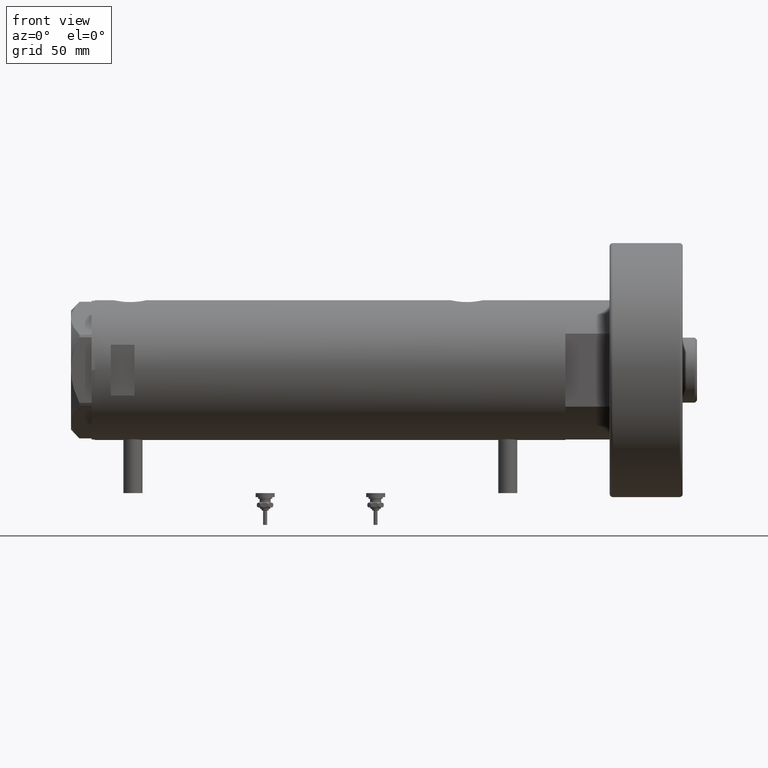
[diagram: clean part render]
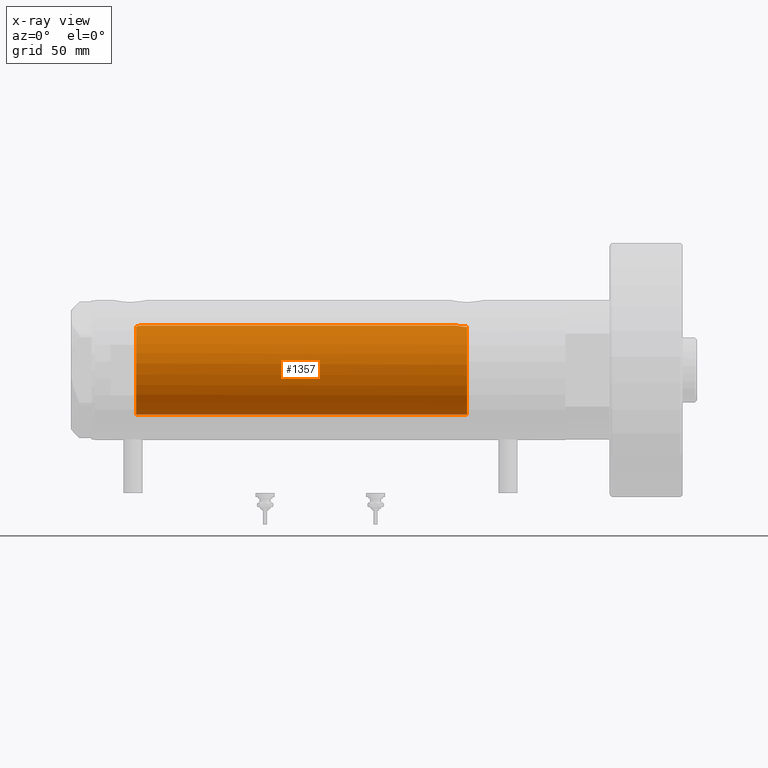
[diagram: x-ray — body ghosted, one internal face saturated and labeled with its STEP entity id]
A machine part, front view, then the same camera in x-ray: the body is ghosted and one INTERNAL B-rep face — a face not visible from any outside direction — is saturated and labeled: STEP entity #1357.
In plain terms, the highlighted cylindrical surface (partial cylindrical patch) has radius 28 mm, axis along (1, 0, -0).
Its self-contained STEP definition (entity closure, byte-faithful):
#195 = LINE ( 'NONE', #2579, #2081 ) ;
#234 = CARTESIAN_POINT ( 'NONE',  ( 27.87937907436173646, -2.608343522657378788, 119.8531017779724124 ) ) ;
#278 = CARTESIAN_POINT ( 'NONE',  ( 27.70817449315709169, -4.048115514111795932, -80.89463981057744490 ) ) ;
#318 = VECTOR ( 'NONE', #5687, 1000.000000000000000 ) ;
#372 = CARTESIAN_POINT ( 'NONE',  ( 27.99747352180818183, -0.4347571716796946872, -79.53072531013185653 ) ) ;
#394 = DIRECTION ( 'NONE',  ( 0.000000000000000000, 0.000000000000000000, -1.000000000000000000 ) ) ;
#411 = AXIS2_PLACEMENT_3D ( 'NONE', #3745, #5705, #3260 ) ;
#693 = VERTEX_POINT ( 'NONE', #5742 ) ;
#724 = CARTESIAN_POINT ( 'NONE',  ( 27.98730817101647261, -0.8707001454186249489, -79.57418472479976401 ) ) ;
#733 = ORIENTED_EDGE ( 'NONE', *, *, #5247, .T. ) ;
#777 = CARTESIAN_POINT ( 'NONE',  ( 27.68450581507584829, -4.196237264393386290, 120.8246780296441614 ) ) ;
#854 = VERTEX_POINT ( 'NONE', #5141 ) ;
#1097 = CARTESIAN_POINT ( 'NONE',  ( 0.000000000000000000, 0.000000000000000000, 122.2000000000000028 ) ) ;
#1200 = CARTESIAN_POINT ( 'NONE',  ( 27.43032278742160912, -5.620674311437150017, -82.67201933177628348 ) ) ;
#1219 = CARTESIAN_POINT ( 'NONE',  ( 27.52591771332015824, -5.139864392033239859, 121.7568941995207723 ) ) ;
#1233 = CARTESIAN_POINT ( 'NONE',  ( 27.21605408577812213, -6.579240077698945477, -86.20000000000000284 ) ) ;
#1266 = CARTESIAN_POINT ( 'NONE',  ( 27.28993558706078559, -6.267945658363885286, -84.05080727201161039 ) ) ;
#1277 = CYLINDRICAL_SURFACE ( 'NONE', #411, 28.00000000000000000 ) ;
#1281 = CARTESIAN_POINT ( 'NONE',  ( 27.46622653369042766, -5.441176343402221782, 122.2000000000000028 ) ) ;
#1284 = CARTESIAN_POINT ( 'NONE',  ( 0.000000000000000000, 0.000000000000000000, -86.20000000000000284 ) ) ;
#1326 = CARTESIAN_POINT ( 'NONE',  ( 27.80238224209238851, -3.326386449198554196, -80.41852099557873146 ) ) ;
#1330 = ORIENTED_EDGE ( 'NONE', *, *, #3242, .F. ) ;
#1357 = ADVANCED_FACE ( 'NONE', ( #1773 ), #1277, .F. ) ;
#1405 = CARTESIAN_POINT ( 'NONE',  ( 27.21605408577812213, -6.579240077698945477, -86.20000000000000284 ) ) ;
#1407 = B_SPLINE_CURVE_WITH_KNOTS ( 'NONE', 3,
 ( #1233, #3182, #4780, #5165, #1266, #5692, #3667, #3760, #1200, #5129, #4681, #4650, #278, #2816, #1326, #3215, #6174, #3309, #5225, #5259, #724, #372, #5198, #6272 ),
 .UNSPECIFIED., .F., .F.,
 ( 4, 2, 2, 2, 2, 2, 2, 2, 2, 2, 2, 4 ),
 ( 0.01022506235776658549, 0.01152748911132699984, 0.01282991586488741419, 0.01348112924166763871, 0.01413234261844786496, 0.01543476937200835390, 0.01673719612556884284, 0.01738840950234907604, 0.01803962287912930923, 0.01934204963268975827, 0.01999326300946997759, 0.02064447638625020037 ),
 .UNSPECIFIED. ) ;
#1505 = CARTESIAN_POINT ( 'NONE',  ( 28.00000000000000000, 8.058211040172173087E-16, -79.52000000000001023 ) ) ;
#1542 = B_SPLINE_CURVE_WITH_KNOTS ( 'NONE', 3,
 ( #1649, #5642, #2679, #2261, #3171, #234, #3239, #6129, #3805, #3204, #777, #4222, #1219, #1281 ),
 .UNSPECIFIED., .F., .F.,
 ( 4, 2, 2, 2, 2, 2, 4 ),
 ( 0.000000000000000000, 0.001600622945448075193, 0.002400934418172112356, 0.003201245890896149519, 0.004001557363620186249, 0.004801868836344223845, 0.006402491781792267814 ),
 .UNSPECIFIED. ) ;
#1611 = DIRECTION ( 'NONE',  ( 1.000000000000000000, 0.000000000000000000, 0.000000000000000000 ) ) ;
#1649 = CARTESIAN_POINT ( 'NONE',  ( 28.00000000000000000, 0.000000000000000000, 119.3200000000000074 ) ) ;
#1679 = DIRECTION ( 'NONE',  ( 0.000000000000000000, 0.000000000000000000, 1.000000000000000000 ) ) ;
#1773 = FACE_OUTER_BOUND ( 'NONE', #4492, .T. ) ;
#1814 = DIRECTION ( 'NONE',  ( -1.000000000000000000, 0.000000000000000000, 0.000000000000000000 ) ) ;
#1872 = AXIS2_PLACEMENT_3D ( 'NONE', #1284, #394, #1814 ) ;
#1985 = AXIS2_PLACEMENT_3D ( 'NONE', #1097, #1679, #1611 ) ;
#2081 = VECTOR ( 'NONE', #3522, 1000.000000000000000 ) ;
#2248 = ORIENTED_EDGE ( 'NONE', *, *, #3671, .F. ) ;
#2261 = CARTESIAN_POINT ( 'NONE',  ( 27.94009016578284132, -1.849003963078876156, 119.5794787532051942 ) ) ;
#2331 = LINE ( 'NONE', #5193, #318 ) ;
#2446 = CARTESIAN_POINT ( 'NONE',  ( 28.00000000000000000, 0.000000000000000000, 119.3200000000000074 ) ) ;
#2504 = VERTEX_POINT ( 'NONE', #2446 ) ;
#2579 = CARTESIAN_POINT ( 'NONE',  ( 28.00000000000000000, 3.429011037612589276E-15, 148.1999999999999886 ) ) ;
#2590 = CIRCLE ( 'NONE', #1985, 28.00000000000000000 ) ;
#2679 = CARTESIAN_POINT ( 'NONE',  ( 27.98432695902670986, -1.071102777755444935, 119.3858034427758952 ) ) ;
#2776 = VERTEX_POINT ( 'NONE', #1505 ) ;
#2816 = CARTESIAN_POINT ( 'NONE',  ( 27.77950496257091828, -3.511644525604262768, -80.53121142391833587 ) ) ;
#3171 = CARTESIAN_POINT ( 'NONE',  ( 27.92172852149585793, -2.107204279616217146, 119.6607593279537554 ) ) ;
#3182 = CARTESIAN_POINT ( 'NONE',  ( 27.21445766202534244, -6.585843933871728062, -85.76551644800677821 ) ) ;
#3204 = CARTESIAN_POINT ( 'NONE',  ( 27.71590503262371996, -3.984646725731630035, 120.6568856620623933 ) ) ;
#3215 = CARTESIAN_POINT ( 'NONE',  ( 27.84562549742225812, -2.942523713096129701, -80.21055141078907980 ) ) ;
#3239 = CARTESIAN_POINT ( 'NONE',  ( 27.85549665828546040, -2.850794839423817173, 119.9636768369876307 ) ) ;
#3242 = EDGE_CURVE ( 'NONE', #854, #693, #2331, .T. ) ;
#3260 = DIRECTION ( 'NONE',  ( -1.000000000000000000, 0.000000000000000000, 0.000000000000000000 ) ) ;
#3309 = CARTESIAN_POINT ( 'NONE',  ( 27.92072186409136236, -2.143620579020480754, -79.86381653969050376 ) ) ;
#3379 = CARTESIAN_POINT ( 'NONE',  ( 27.46622653369042766, -5.441176343402221782, 122.2000000000000028 ) ) ;
#3522 = DIRECTION ( 'NONE',  ( -0.000000000000000000, -0.000000000000000000, -1.000000000000000000 ) ) ;
#3620 = ORIENTED_EDGE ( 'NONE', *, *, #5478, .T. ) ;
#3667 = CARTESIAN_POINT ( 'NONE',  ( 27.36461315879794043, -5.931995402771978121, -83.24427370164931972 ) ) ;
#3671 = EDGE_CURVE ( 'NONE', #2504, #4756, #1542, .T. ) ;
#3745 = CARTESIAN_POINT ( 'NONE',  ( 0.000000000000000000, 0.000000000000000000, 148.1999999999999886 ) ) ;
#3760 = CARTESIAN_POINT ( 'NONE',  ( 27.40754191563010522, -5.730381220489945804, -82.85863096555547713 ) ) ;
#3803 = ORIENTED_EDGE ( 'NONE', *, *, #5715, .F. ) ;
#3805 = CARTESIAN_POINT ( 'NONE',  ( 27.77532582369375191, -3.546840381797753849, 120.3513442352566756 ) ) ;
#4140 = CIRCLE ( 'NONE', #1872, 28.00000000000000000 ) ;
#4222 = CARTESIAN_POINT ( 'NONE',  ( 27.59002303441815229, -4.790793940098335923, 121.3581617652146178 ) ) ;
#4426 = VERTEX_POINT ( 'NONE', #1405 ) ;
#4492 = EDGE_LOOP ( 'NONE', ( #2248, #3620, #3803, #733, #1330, #6321 ) ) ;
#4650 = CARTESIAN_POINT ( 'NONE',  ( 27.65700784474207552, -4.380217411398927396, -81.17047453774083010 ) ) ;
#4681 = CARTESIAN_POINT ( 'NONE',  ( 27.55308463769900840, -4.992385646466226845, -81.79156508565563399 ) ) ;
#4756 = VERTEX_POINT ( 'NONE', #3379 ) ;
#4780 = CARTESIAN_POINT ( 'NONE',  ( 27.22359243188622102, -6.548490838374235956, -85.32326656774586127 ) ) ;
#5129 = CARTESIAN_POINT ( 'NONE',  ( 27.50152613123827550, -5.265397630035332455, -82.13030070339348754 ) ) ;
#5141 = CARTESIAN_POINT ( 'NONE',  ( -28.00000000000000000, 0.000000000000000000, 122.2000000000000028 ) ) ;
#5165 = CARTESIAN_POINT ( 'NONE',  ( 27.26146154097649443, -6.389008671741151169, -84.46702257288443150 ) ) ;
#5193 = CARTESIAN_POINT ( 'NONE',  ( -28.00000000000000000, 0.000000000000000000, 148.1999999999999886 ) ) ;
#5198 = CARTESIAN_POINT ( 'NONE',  ( 27.99999999999999645, -0.2171842281426366317, -79.52000000000001023 ) ) ;
#5225 = CARTESIAN_POINT ( 'NONE',  ( 27.94978721344213923, -1.729827962054677482, -79.73650615356604021 ) ) ;
#5247 = EDGE_CURVE ( 'NONE', #4426, #693, #4140, .T. ) ;
#5259 = CARTESIAN_POINT ( 'NONE',  ( 27.97963188585490357, -1.089002775846581894, -79.60708365738665293 ) ) ;
#5462 = EDGE_CURVE ( 'NONE', #854, #4756, #2590, .T. ) ;
#5478 = EDGE_CURVE ( 'NONE', #2504, #2776, #195, .T. ) ;
#5642 = CARTESIAN_POINT ( 'NONE',  ( 28.00000000000001066, -0.5413643627070141573, 119.3200000000000216 ) ) ;
#5687 = DIRECTION ( 'NONE',  ( -0.000000000000000000, -0.000000000000000000, -1.000000000000000000 ) ) ;
#5692 = CARTESIAN_POINT ( 'NONE',  ( 27.34439869716138816, -6.024183900845911488, -83.44423424753804852 ) ) ;
#5705 = DIRECTION ( 'NONE',  ( -0.000000000000000000, -0.000000000000000000, -1.000000000000000000 ) ) ;
#5715 = EDGE_CURVE ( 'NONE', #4426, #2776, #1407, .T. ) ;
#5742 = CARTESIAN_POINT ( 'NONE',  ( -28.00000000000000000, 0.000000000000000000, -86.20000000000000284 ) ) ;
#6129 = CARTESIAN_POINT ( 'NONE',  ( 27.80347162683809259, -3.320043793664063436, 120.2127974257676755 ) ) ;
#6174 = CARTESIAN_POINT ( 'NONE',  ( 27.86589383012873711, -2.744524676092585214, -80.11575755532265930 ) ) ;
#6272 = CARTESIAN_POINT ( 'NONE',  ( 28.00000000000000000, 8.058211040172173087E-16, -79.52000000000001023 ) ) ;
#6321 = ORIENTED_EDGE ( 'NONE', *, *, #5462, .T. ) ;